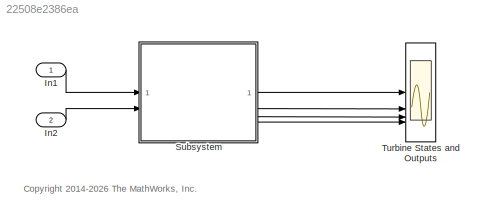
MODEL slx_22508e2386ea
KIND model
CONFIG EnableMultiTasking = on
CONFIG FixedStep = 0.001
CONFIG MaxStep = 1e-4
CONFIG SolverName = ode3
CONFIG StopTime = 20
BLOCK [Inport] In1
BLOCK [Inport] In2
  Port = 2
BLOCK [ModelReference] Subsystem
  ModelNameDialog = ControlLogic.slx
  ModelReferenceVersion = 12.1
BLOCK [Scope] Turbine States and Outputs
  ActiveDisplayYMaximum = 5
  ActiveDisplayYMinimum = -5
  DataLoggingDecimateData = on
  DataLoggingDecimation = 1
  DataLoggingSaveFormat = Structure With Time
  Floating = off
  GraphicalSettings = {"GraphicalSettings":{"LegacySettings":true,"Style":{"AxesScalingProperties":{"ScaleAxesLimitsAtStop":false},"Style":{"AxesColor":"[0 0 0]","ChannelNames":["","","",""],"ColorOrder":"[1 0.909803921568627 0.392156862745098;0.149019607843137 0.549019607843137 0.866666666666667;0.96078431372549 0.466666666666667 0.16078431372549;0.286274509803922 0.858823529411765 0.250980392156863;0.752941176470588 ...<+581ch>
  LayoutDimensionsString = [4 1]
  MultipleDisplayCache = [{"MaxYLimMag":10,"MaxYLimReal":5,"MinYLimMag":0,"MinYLimReal":-5,"PlotAsMagnitudePhase":false,"ShowGrid":true,"ShowLegend":false,"Title":"%<SignalLabel>","YLabel":""},{"MaxYLimMag":10,"MaxYLimReal":5,"MinYLimMag":0,"MinYLimReal":-5,"PlotAsMagnitudePhase":false,"ShowGrid":true,"ShowLegend":false,"Title":"%<SignalLabel>","YLabel":""},{"MaxYLimMag":10,"MaxYLimReal":5,"MinYLimMag":0,"MinYLimReal":-5,...<+269ch>
  NumInputPorts = 4
  WasSavedAsWebScope = on
  WindowPosition = [1006 206 324 572]
ANNOTATION (root): <copyright redacted>
LINE In1:1 -> Subsystem:1
LINE In2:1 -> Subsystem:2
LINE Subsystem:1 -> Turbine States and Outputs:1
LINE Subsystem:2 -> Turbine States and Outputs:2
LINE Subsystem:3 -> Turbine States and Outputs:3
LINE Subsystem:4 -> Turbine States and Outputs:4
